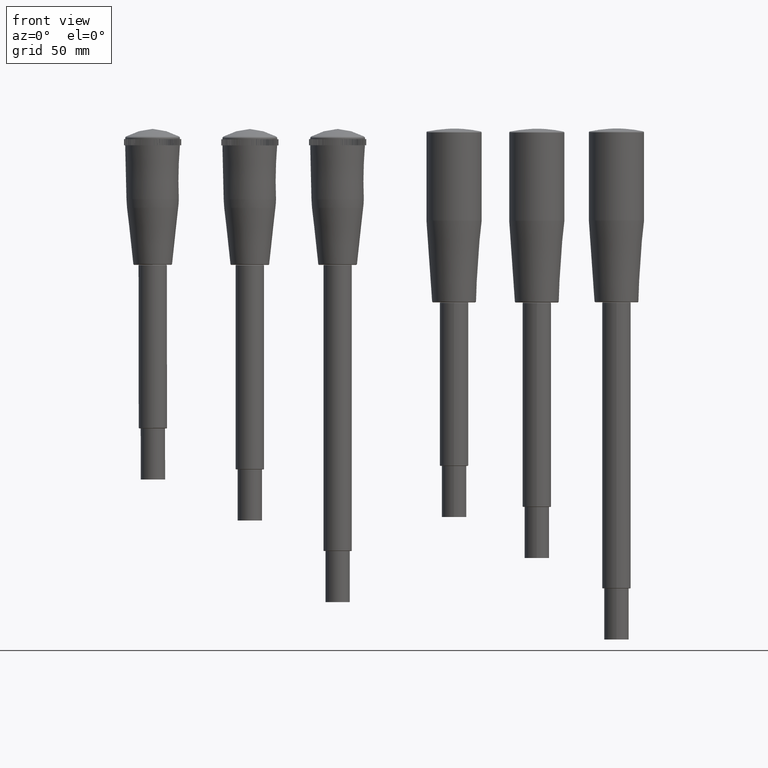
[diagram: clean part render]
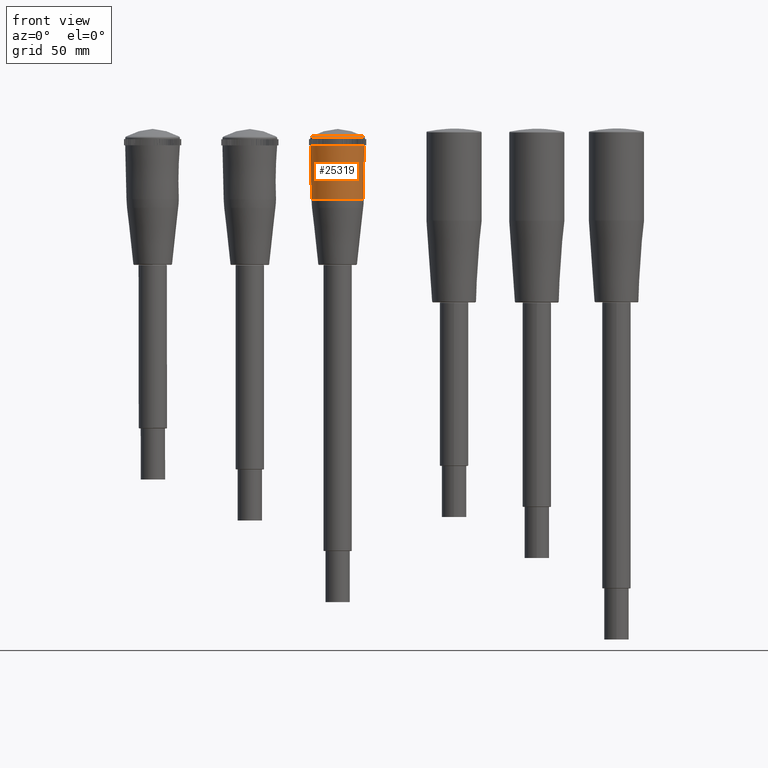
[diagram: same view with one face highlighted and labeled with its STEP entity id]
A machine part, front view. The second image highlights one B-rep face of the part: STEP entity #25319.
In plain terms, the highlighted conical surface has half-angle 1.322 deg.
Its self-contained STEP definition (entity closure, byte-faithful):
#185=CONICAL_SURFACE('',#27911,13.125,1.32197565953698);
#246=FACE_BOUND('',#3553,.T.);
#2186=FACE_OUTER_BOUND('',#3552,.T.);
#3552=EDGE_LOOP('',(#23301));
#3553=EDGE_LOOP('',(#23302));
#4808=CIRCLE('',#27688,13.4076923076923);
#4919=CIRCLE('',#27912,12.7989623022809);
#12210=VERTEX_POINT('',#42944);
#12224=VERTEX_POINT('',#43188);
#15820=EDGE_CURVE('',#12210,#12210,#4808,.T.);
#15937=EDGE_CURVE('',#12224,#12224,#4919,.T.);
#23301=ORIENTED_EDGE('',*,*,#15820,.T.);
#23302=ORIENTED_EDGE('',*,*,#15937,.F.);
#25319=ADVANCED_FACE('',(#2186,#246),#185,.T.);
#27688=AXIS2_PLACEMENT_3D('',#42945,#35026,#35027);
#27911=AXIS2_PLACEMENT_3D('',#43187,#35478,#35479);
#27912=AXIS2_PLACEMENT_3D('',#43189,#35480,#35481);
#35026=DIRECTION('center_axis',(-1.,0.,0.));
#35027=DIRECTION('ref_axis',(0.,1.,0.));
#35478=DIRECTION('center_axis',(1.,0.,0.));
#35479=DIRECTION('ref_axis',(0.,1.,0.));
#35480=DIRECTION('center_axis',(-1.,0.,0.));
#35481=DIRECTION('ref_axis',(0.,0.,-1.));
#42944=CARTESIAN_POINT('',(58.5,-13.4076923076923,1.6419687468568E-15));
#42945=CARTESIAN_POINT('Origin',(58.5,0.,0.));
#43187=CARTESIAN_POINT('Origin',(46.25,0.,0.));
#43188=CARTESIAN_POINT('',(32.1216997655058,1.5674208215896E-15,12.7989623022809));
#43189=CARTESIAN_POINT('Origin',(32.1216997655058,0.,0.));